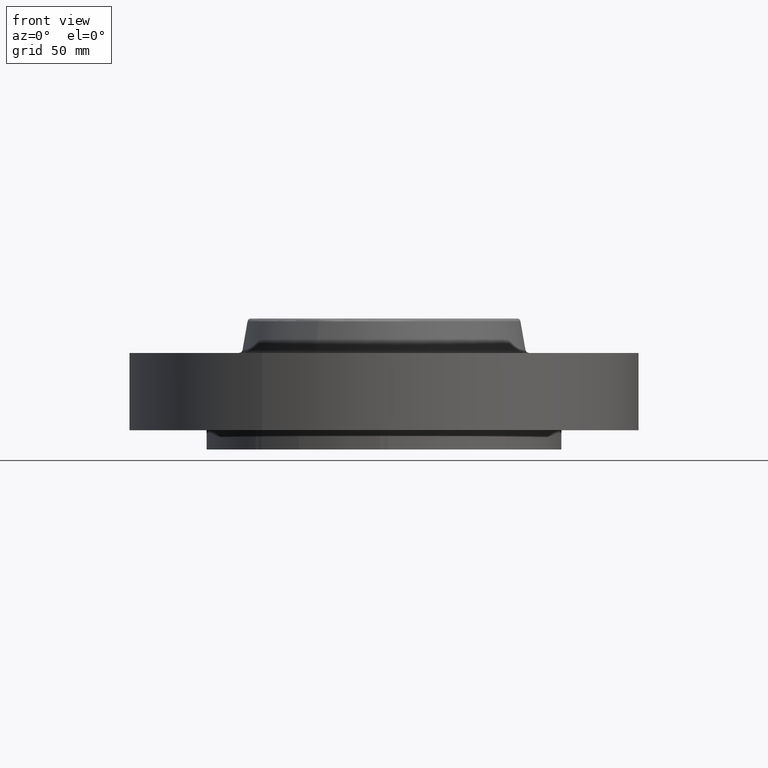
[diagram: clean part render]
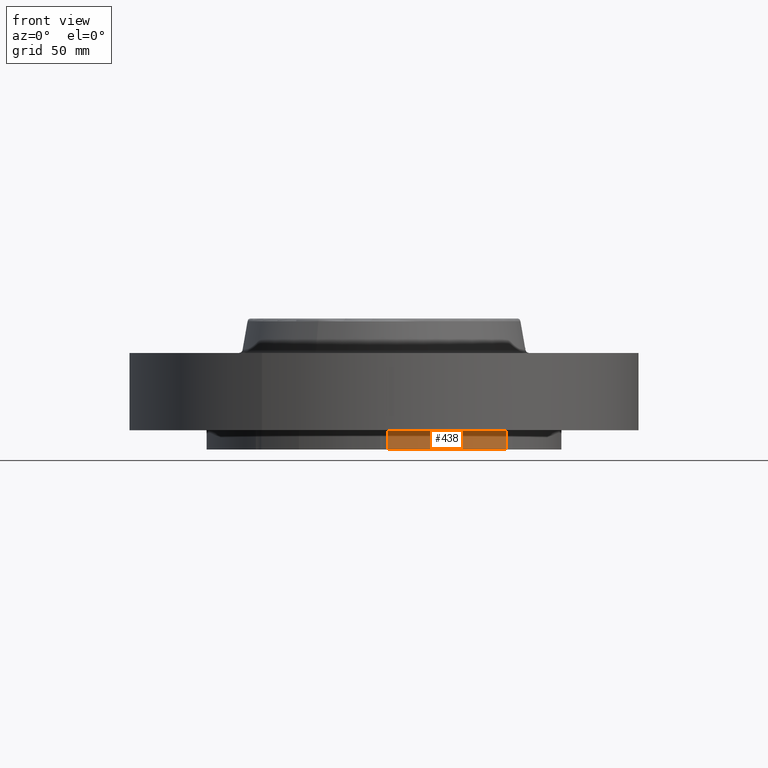
[diagram: same view with one face highlighted and labeled with its STEP entity id]
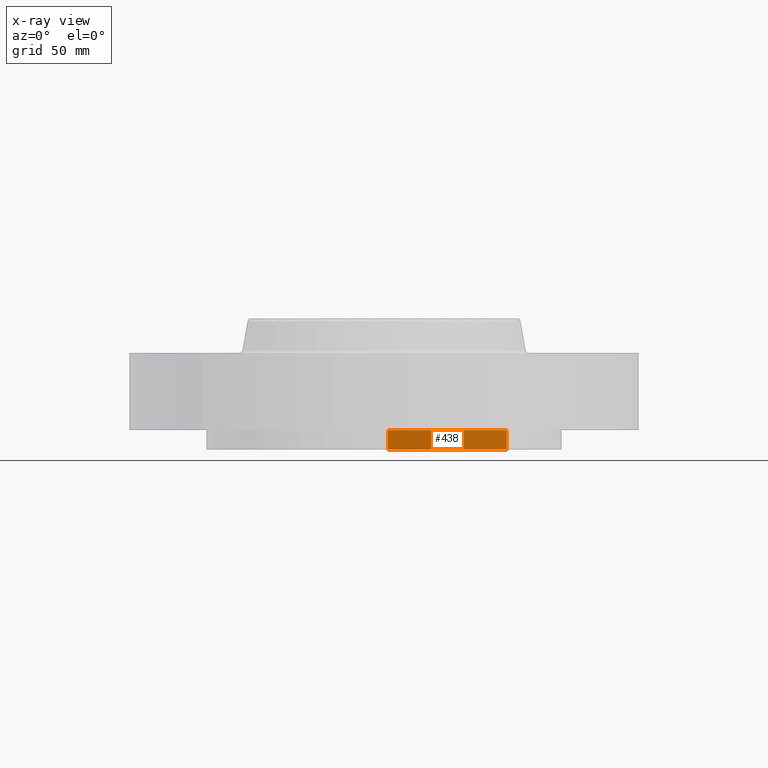
[diagram: x-ray of the same camera — body ghosted, the highlighted face saturated]
A machine part, front view. The second image highlights one B-rep face of the part: STEP entity #438.
The next image is the same camera in x-ray: the body ghosted, the highlighted face saturated — about 0% of this face is hidden behind the body in this view.
In plain terms, the highlighted cylindrical surface (partial cylindrical patch) has radius 73.025 mm, axis along (0, 0, -1).
Its self-contained STEP definition (entity closure, byte-faithful):
#223=AXIS2_PLACEMENT_3D('Circle Axis2P3D',#221,#222,$) ;
#359=AXIS2_PLACEMENT_3D('Cylinder Axis2P3D',#356,#357,#358) ;
#422=AXIS2_PLACEMENT_3D('Circle Axis2P3D',#420,#421,$) ;
#218=CARTESIAN_POINT('Vertex',(1.98887798493,-2.07605138692,-0.313000000001)) ;
#221=CARTESIAN_POINT('Axis2P3D Location',(0.,0.,-0.313000000001)) ;
#225=CARTESIAN_POINT('Vertex',(0.0616409036851,-2.87433912388,-0.313000000001)) ;
#356=CARTESIAN_POINT('Axis2P3D Location',(0.,0.,0.748500000003)) ;
#413=CARTESIAN_POINT('Line Origine',(1.98887798493,-2.07605138692,-0.156500000001)) ;
#417=CARTESIAN_POINT('Vertex',(1.98887798493,-2.07605138692,2.79741234551E-016)) ;
#420=CARTESIAN_POINT('Axis2P3D Location',(0.,0.,2.79741234551E-016)) ;
#424=CARTESIAN_POINT('Vertex',(0.0616409036851,-2.87433912388,2.79741234551E-016)) ;
#427=CARTESIAN_POINT('Line Origine',(0.0616409036851,-2.87433912388,-0.156500000001)) ;
#222=DIRECTION('Axis2P3D Direction',(0.,0.,-0.0393700787402)) ;
#357=DIRECTION('Axis2P3D Direction',(0.,0.,-0.0393700787402)) ;
#358=DIRECTION('Axis2P3D XDirection',(0.0188750212049,0.0345504945626,0.)) ;
#414=DIRECTION('Vector Direction',(0.,0.,-0.0393700787402)) ;
#421=DIRECTION('Axis2P3D Direction',(0.,0.,-0.0393700787402)) ;
#428=DIRECTION('Vector Direction',(0.,0.,-0.0393700787402)) ;
#415=VECTOR('Line Direction',#414,0.0393700787402) ;
#429=VECTOR('Line Direction',#428,0.0393700787402) ;
#433=ORIENTED_EDGE('',*,*,#227,.F.) ;
#434=ORIENTED_EDGE('',*,*,#419,.F.) ;
#435=ORIENTED_EDGE('',*,*,#426,.T.) ;
#436=ORIENTED_EDGE('',*,*,#431,.T.) ;
#438=ADVANCED_FACE('PartBody',(#437),#360,.T.) ;
#224=CIRCLE('generated circle',#223,2.87500000001) ;
#423=CIRCLE('generated circle',#422,2.87500000001) ;
#360=CYLINDRICAL_SURFACE('generated cylinder',#359,2.87500000001) ;
#227=EDGE_CURVE('',#219,#226,#224,.T.) ;
#419=EDGE_CURVE('',#418,#219,#416,.T.) ;
#426=EDGE_CURVE('',#418,#425,#423,.T.) ;
#431=EDGE_CURVE('',#425,#226,#430,.T.) ;
#432=EDGE_LOOP('',(#433,#434,#435,#436)) ;
#437=FACE_OUTER_BOUND('',#432,.T.) ;
#416=LINE('Line',#413,#415) ;
#430=LINE('Line',#427,#429) ;
#219=VERTEX_POINT('',#218) ;
#226=VERTEX_POINT('',#225) ;
#418=VERTEX_POINT('',#417) ;
#425=VERTEX_POINT('',#424) ;